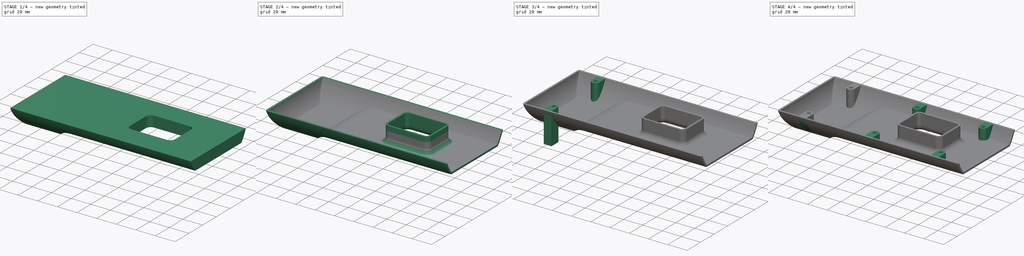
[diagram: build sequence overview — one tinted view per stage of 4, left to right]
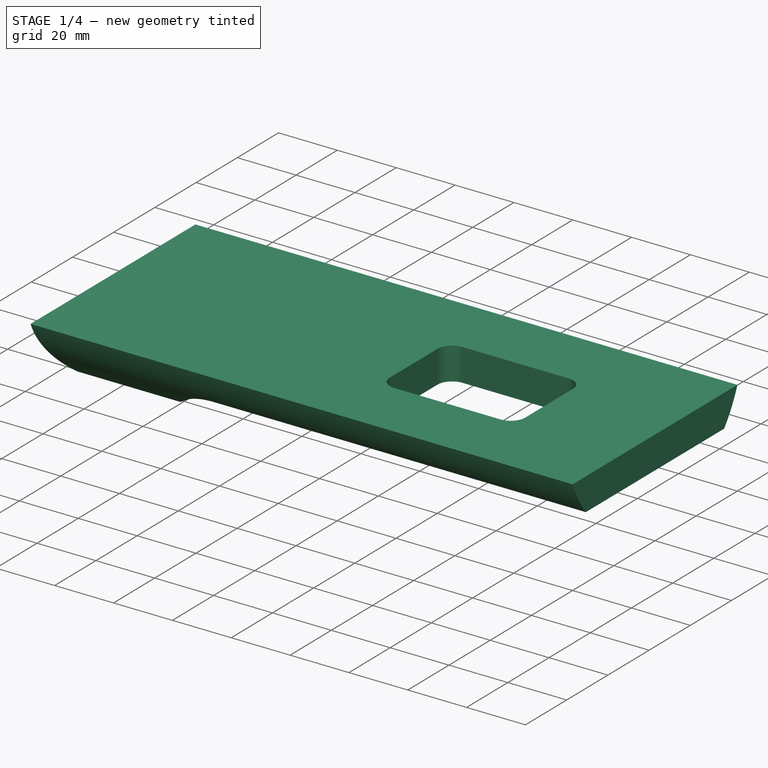
[diagram: stage 1 of 4 — iso view after this stage's code; geometry added in this stage tinted green]
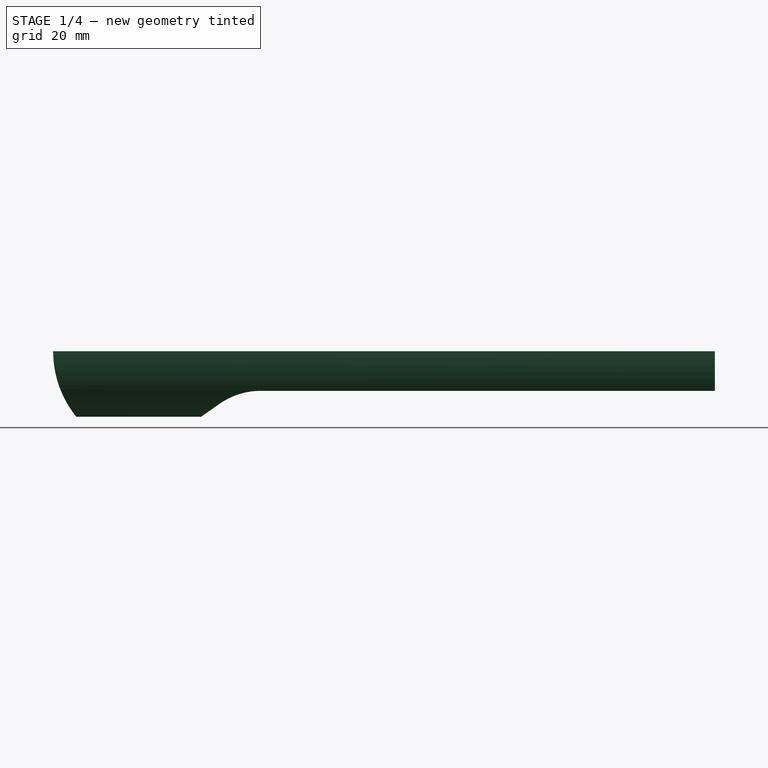
[diagram: stage 1 of 4 — front view after this stage's code; geometry added in this stage tinted green]
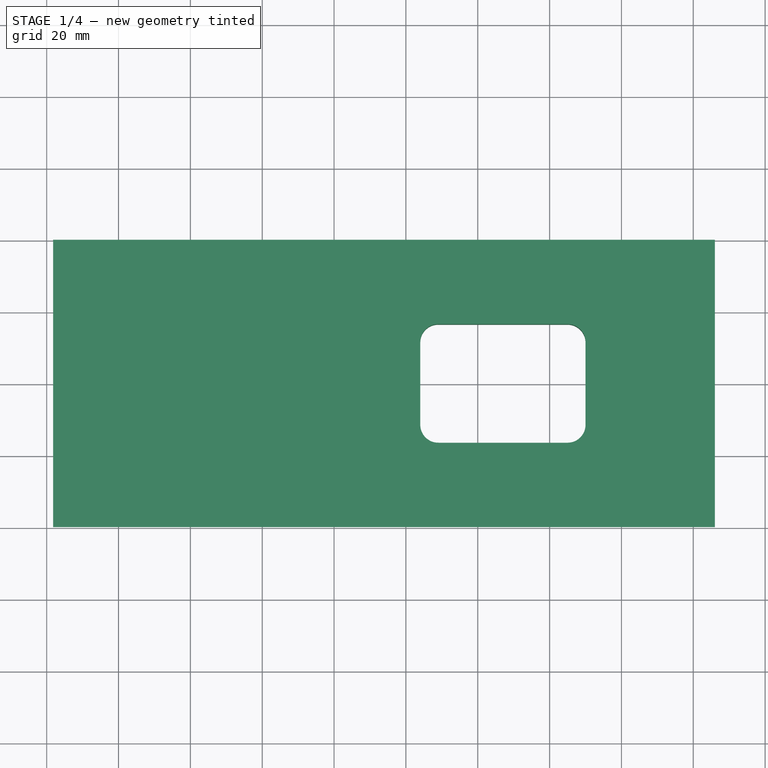
[diagram: stage 1 of 4 — top view after this stage's code; geometry added in this stage tinted green]
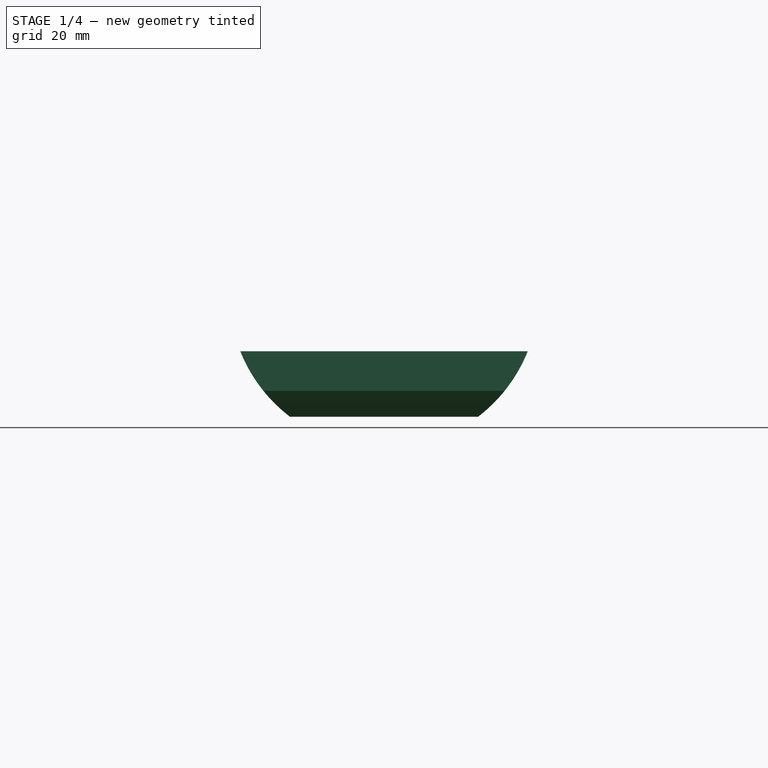
[diagram: stage 1 of 4 — right view after this stage's code; geometry added in this stage tinted green]
FCSTD DOCUMENT  (FreeCAD 0.21R33771 (Git))
Label: ex23
License: All rights reserved
LicenseURL: https://en.wikipedia.org/wiki/All_rights_reserved
objects: Sketcher::SketchObject×7, PartDesign::Pocket×5, PartDesign::Pad×3, PartDesign::Fillet×1, PartDesign::Thickness×1, PartDesign::LinearPattern×1, PartDesign::Body×1
note: 29 computed .brp shape members not serialized (recipe doc carries the construction recipe); baked Part::Feature solids carry a one-line shape summary decoded from their .brp

FEATURE [Sketcher::SketchObject] Sketch
  FullyConstrained = true
  MapMode = 5
  Placement = pos=(0,0,0) rot=(0.57735,0.57735,0.57735;2.0944rad)
  Support = -> [YZ_Plane]
  sketch-geometry (4):
    g0: ArcOfCircle CenterX=0 CenterY=0 CenterZ=0 NormalX=0 NormalY=0 NormalZ=1 AngleXU=0 Radius=43.0813 StartAngle=3.5221 EndAngle=4.13087
    g1: LineSegment StartX=-40 StartY=-16 StartZ=0 EndX=40 EndY=-16 EndZ=0
    g2: LineSegment StartX=23.6643 StartY=-36 StartZ=0 EndX=-23.6643 EndY=-36 EndZ=0
    g3: ArcOfCircle CenterX=0 CenterY=0 CenterZ=0 NormalX=0 NormalY=0 NormalZ=1 AngleXU=0 Radius=43.0813 StartAngle=5.29391 EndAngle=5.90268
  constraints (11):
    c: Coincident(g0,g-1)
    c: Horizontal(g2)
    c: Coincident(g0,g2)
    c: Coincident(g0,g3)
    c: Coincident(g2,g3)
    c: Coincident(g3,g1)
    c: Coincident(g0,g1)
    c: DistanceY(g-1,g0) = -16
    c: Symmetric(g0,g1,g-2)
    c: DistanceY(g2,g1) = 20
    c: DistanceX(g1,g1) = 80
FEATURE [PartDesign::Pad] Pad
  Direction = (1,-2e-16,3e-16)
  Length = 186
  Length2 = 10
  Placement = pos=(0,0,0) rot=(1,1,1;2.0944rad)
  Profile = -> Sketch
  ReferenceAxis = -> Sketch [N_Axis]
  Type = 0
FEATURE [Sketcher::SketchObject] Sketch001
  ExternalGeometry = -> [Pad]
  FullyConstrained = false
  MapMode = 5
  Placement = pos=(0,0,0) rot=(1,0,0;1.5708rad)
  Support = -> [XZ_Plane]
  sketch-geometry (10):
    g0: ArcOfCircle CenterX=30.8 CenterY=-16 CenterZ=0 NormalX=0 NormalY=0 NormalZ=1 AngleXU=0 Radius=29 StartAngle=3.14159 EndAngle=3.82004
    g1: LineSegment StartX=8.22213 StartY=-34.2 StartZ=0 EndX=43 EndY=-34.2 EndZ=0
    g2: LineSegment StartX=43 StartY=-34.2 StartZ=0 EndX=48.1171 EndY=-30.617 EndZ=0
    g3: LineSegment StartX=59.5886 StartY=-27 StartZ=0 EndX=187.259 EndY=-27 EndZ=0
    g4: ArcOfCircle CenterX=59.5886 CenterY=-47 CenterZ=0 NormalX=0 NormalY=0 NormalZ=1 AngleXU=0 Radius=20 StartAngle=1.5708 EndAngle=2.18166
    g5: LineSegment StartX=1.8 StartY=-16 StartZ=0 EndX=-8.28708 EndY=-16 EndZ=0
    g6: LineSegment StartX=-8.28708 StartY=-16 StartZ=0 EndX=-8.28708 EndY=-44.8886 EndZ=0
    g7: LineSegment StartX=-8.28708 StartY=-44.8886 StartZ=0 EndX=191.951 EndY=-44.8886 EndZ=0
    g8: LineSegment StartX=191.951 StartY=-44.8886 StartZ=0 EndX=191.951 EndY=-27 EndZ=0
    g9: LineSegment StartX=191.951 StartY=-27 StartZ=0 EndX=187.259 EndY=-27 EndZ=0
  constraints (25):
    c: PointOnObject(g0,g-5)
    c: Radius(g0) = 29
    c: Horizontal(g1)
    c: Coincident(g1,g2)
    c: Horizontal(g3)
    c: Angle(g2,g1) = 2.53073
    c: Tangent(g2,g4) = 1.5708
    c: Tangent(g3,g4) = 1.5708
    c: Radius(g4) = 20
    c: DistanceY(g3,g-5) = 11
    c: Horizontal(g5)
    c: Coincident(g5,g6)
    c: Vertical(g6)
    c: Coincident(g6,g7)
    c: Horizontal(g7)
    c: Coincident(g7,g8)
    c: Vertical(g8)
    c: Coincident(g8,g9)
    c: Coincident(g9,g3)
    c: Horizontal(g9)
    c: DistanceX(g-6,g1) = 43
    c: Coincident(g1,g0)
    c: Distance(g0,g-6) = 1.8
    c: DistanceX(g-5,g0) = 1.8
    c: Coincident(g5,g0)
FEATURE [PartDesign::Pocket] Pocket
  BaseFeature = -> Pad
  Direction = (0,1,-2e-16)
  Length = 5
  Length2 = 5
  Midplane = true
  Placement = pos=(0,0,0) rot=(1,1,1;2.0944rad)
  Profile = -> Sketch001
  ReferenceAxis = -> Sketch001 [N_Axis]
  Type = 1
FEATURE [Sketcher::SketchObject] Sketch002
  ExternalGeometry = -> [Pocket]
  FullyConstrained = true
  MapMode = 5
  Placement = pos=(1.15e-14,-1.31e-14,-16) rot=(0,0,-1;1.5708rad)
  Support = -> [Pocket]
  sketch-geometry (10):
    g0: ArcOfCircle CenterX=-11.5 CenterY=145 CenterZ=0 NormalX=0 NormalY=0 NormalZ=1 AngleXU=0 Radius=5 StartAngle=1.5708 EndAngle=3.14159
    g1: LineSegment StartX=-11.5 StartY=150 StartZ=0 EndX=11.5 EndY=150 EndZ=0
    g2: ArcOfCircle CenterX=11.5 CenterY=145 CenterZ=0 NormalX=0 NormalY=0 NormalZ=1 AngleXU=0 Radius=5 StartAngle=-2.75e-14 EndAngle=1.5708
    g3: LineSegment StartX=16.5 StartY=145 StartZ=0 EndX=16.5 EndY=109 EndZ=0
    g4: ArcOfCircle CenterX=11.5 CenterY=109 CenterZ=0 NormalX=0 NormalY=0 NormalZ=1 AngleXU=0 Radius=5 StartAngle=4.71239 EndAngle=6.28319
    g5: LineSegment StartX=11.5 StartY=104 StartZ=0 EndX=-11.5 EndY=104 EndZ=0
    g6: ArcOfCircle CenterX=-11.5 CenterY=109 CenterZ=0 NormalX=0 NormalY=0 NormalZ=1 AngleXU=0 Radius=5 StartAngle=3.14159 EndAngle=4.71239
    g7: LineSegment StartX=-16.5 StartY=109 StartZ=0 EndX=-16.5 EndY=145 EndZ=0
    g8: GeomPoint X=-16.5 Y=150 Z=0
    g9: GeomPoint X=16.5 Y=104 Z=0
  constraints (23):
    c: Tangent(g0,g1) = 1.5708
    c: Tangent(g1,g2) = 1.5708
    c: Tangent(g2,g3) = 1.5708
    c: Tangent(g3,g4) = 1.5708
    c: Tangent(g4,g5) = 1.5708
    c: Tangent(g5,g6) = 1.5708
    c: Tangent(g6,g7) = 1.5708
    c: Tangent(g7,g0) = 1.5708
    c: Horizontal(g1)
    c: Horizontal(g5)
    c: Vertical(g3)
    c: Vertical(g7)
    c: Equal(g2,g4)
    c: Equal(g4,g6)
    c: PointOnObject(g8,g1)
    c: PointOnObject(g8,g7)
    c: PointOnObject(g9,g3)
    c: PointOnObject(g9,g5)
    c: Symmetric(g0,g2,g-2)
    c: DistanceX(g0,g2) = 33
    c: DistanceY(g4,g1) = 46
    c: DistanceY(g1,g-3) = 36
    c: Radius(g0) = 5
FEATURE [PartDesign::Pocket] Pocket001
  BaseFeature = -> Pocket
  Direction = (7e-16,-8e-16,-1)
  Length = 5
  Length2 = 5
  Placement = pos=(0,0,0) rot=(1,1,1;2.0944rad)
  Profile = -> Sketch002
  ReferenceAxis = -> Sketch002 [N_Axis]
  Type = 1
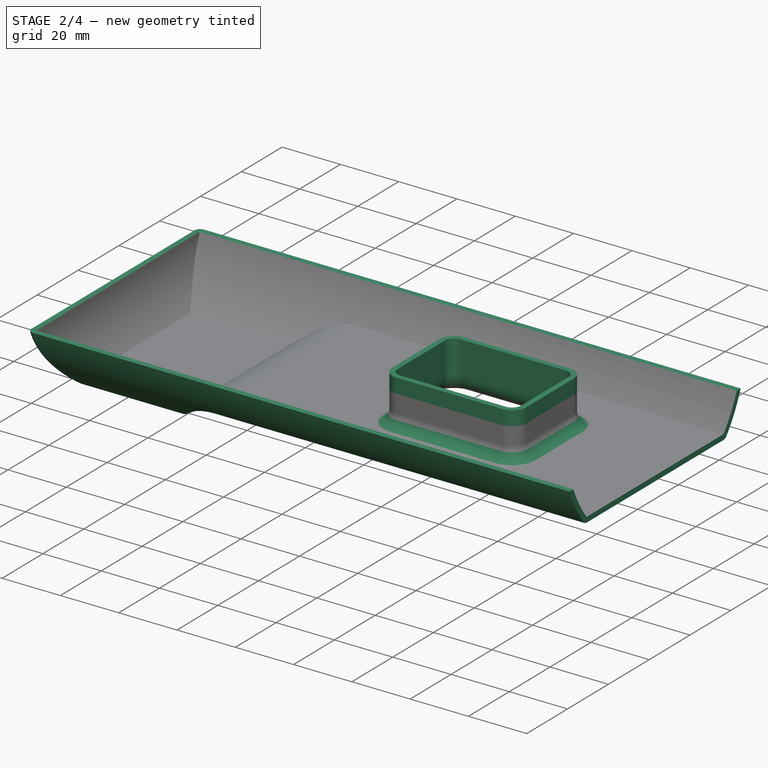
[diagram: stage 2 of 4 — iso view after this stage's code; geometry added in this stage tinted green]
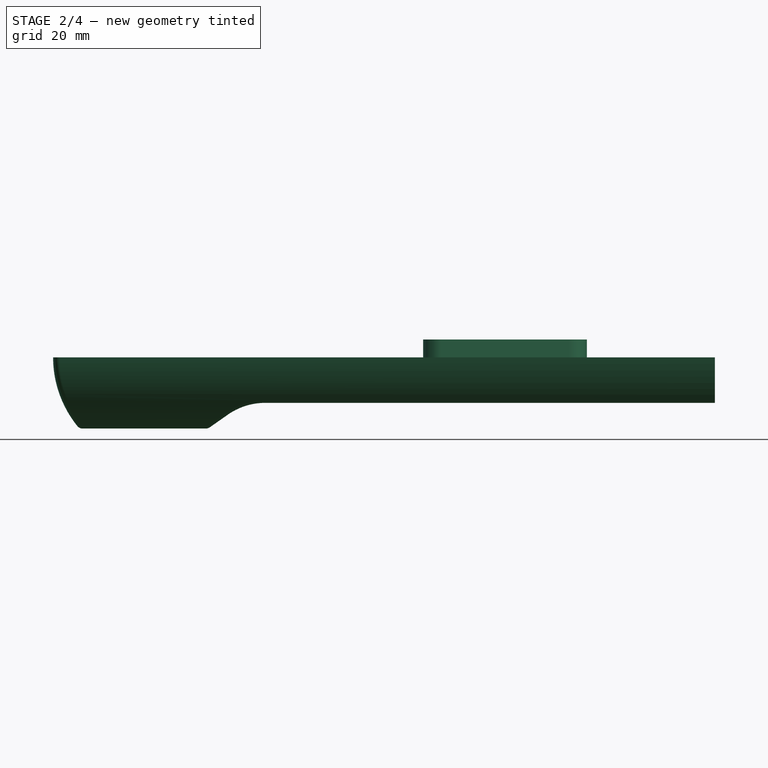
[diagram: stage 2 of 4 — front view after this stage's code; geometry added in this stage tinted green]
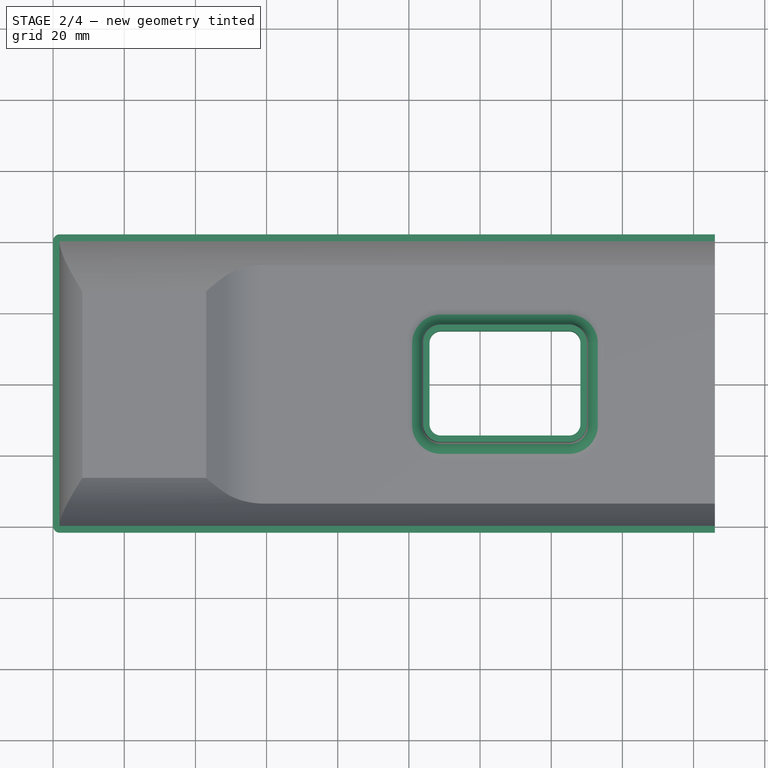
[diagram: stage 2 of 4 — top view after this stage's code; geometry added in this stage tinted green]
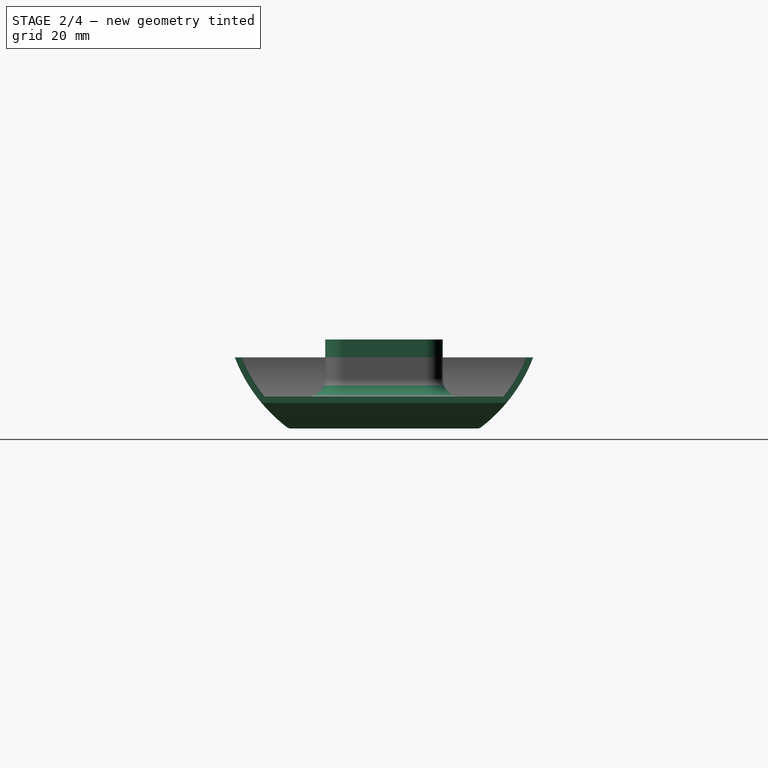
[diagram: stage 2 of 4 — right view after this stage's code; geometry added in this stage tinted green]
FEATURE [PartDesign::Fillet] Fillet
  Base = -> Pocket001 [Edge23]
  BaseFeature = -> Pocket001
  Placement = pos=(0,0,0) rot=(1,1,1;2.0944rad)
  Radius = 5
  SupportTransform = false
  UseAllEdges = false
FEATURE [PartDesign::Thickness] Thickness
  Base = -> Fillet [Face11,Face25]
  BaseFeature = -> Fillet
  Intersection = false
  Join = 0
  Mode = 0
  SupportTransform = false
  Value = 1.8
FEATURE [PartDesign::Pad] Pad001
  BaseFeature = -> Thickness
  Direction = (-6e-16,1.4e-15,1)
  Length = 5
  Length2 = 10
  Profile = -> Thickness [Face35]
  Type = 0
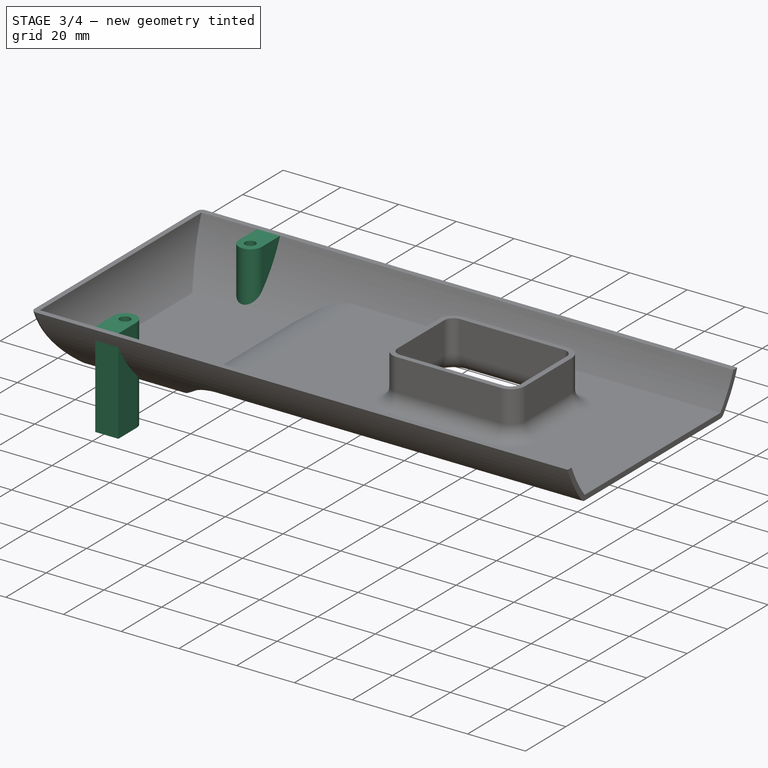
[diagram: stage 3 of 4 — iso view after this stage's code; geometry added in this stage tinted green]
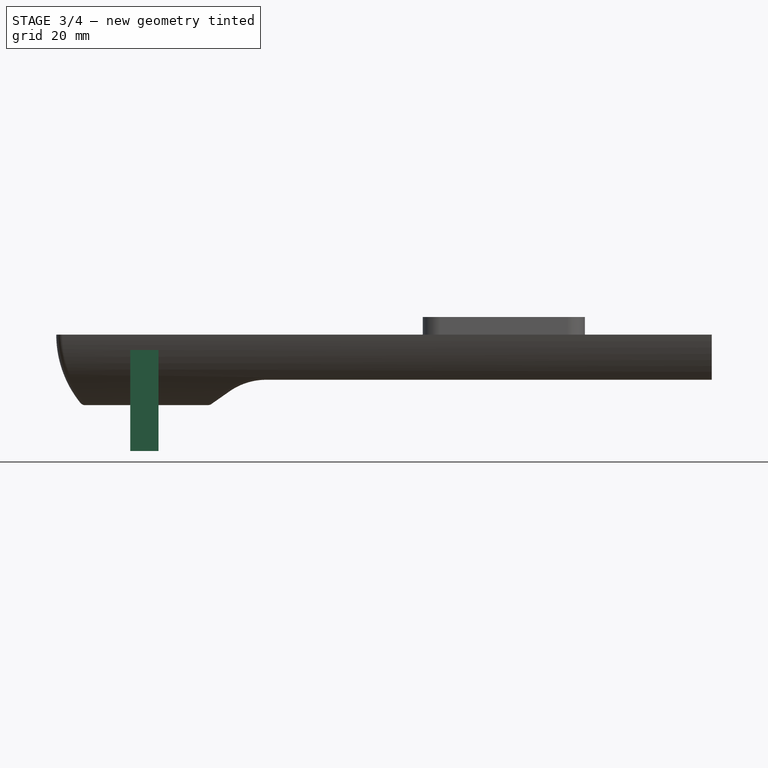
[diagram: stage 3 of 4 — front view after this stage's code; geometry added in this stage tinted green]
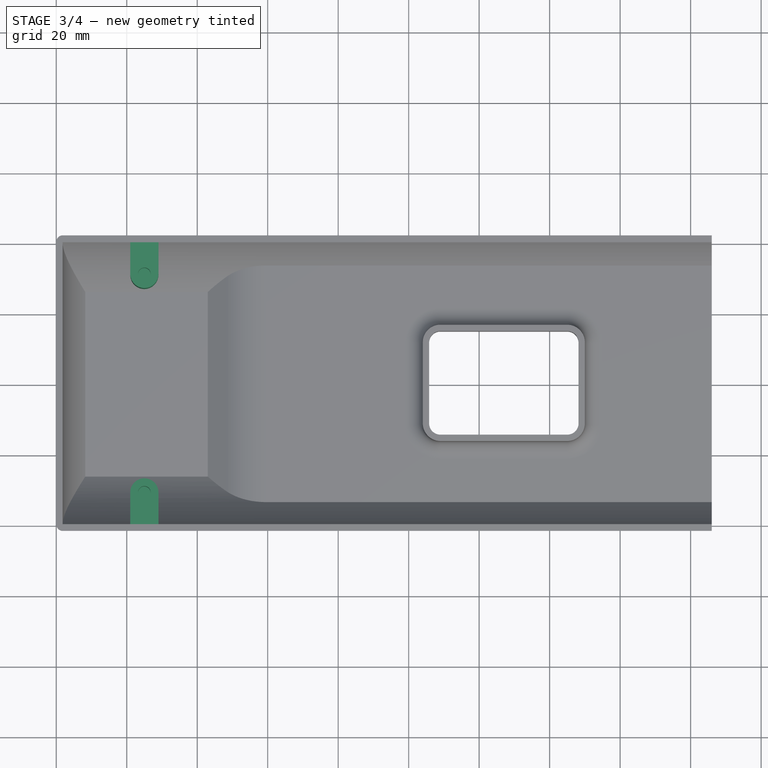
[diagram: stage 3 of 4 — top view after this stage's code; geometry added in this stage tinted green]
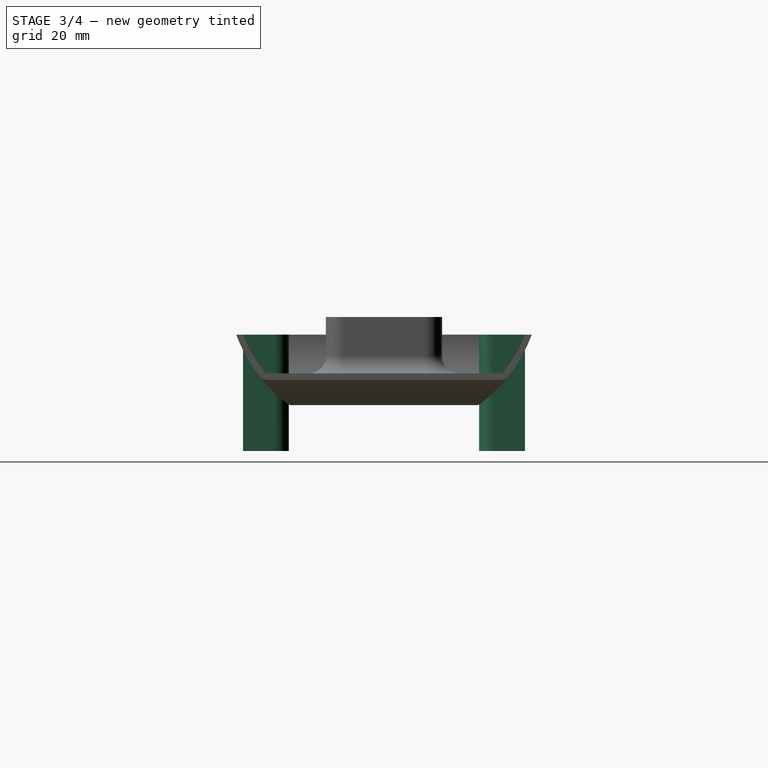
[diagram: stage 3 of 4 — right view after this stage's code; geometry added in this stage tinted green]
FEATURE [Sketcher::SketchObject] Sketch003
  ExternalGeometry = -> [Pad001]
  FullyConstrained = false
  MapMode = 5
  Placement = pos=(1.69e-14,-1.49e-14,-16) rot=(0,0,1;0rad)
  Support = -> [Pad001]
  sketch-geometry (8):
    g0: ArcOfCircle CenterX=25 CenterY=31 CenterZ=0 NormalX=0 NormalY=0 NormalZ=1 AngleXU=0 Radius=4 StartAngle=3.14159 EndAngle=6.28319
    g1: LineSegment StartX=29 StartY=31 StartZ=0 EndX=29 EndY=40 EndZ=0
    g2: LineSegment StartX=21 StartY=40 StartZ=0 EndX=21 EndY=31 EndZ=0
    g3: ArcOfCircle CenterX=25 CenterY=-31 CenterZ=0 NormalX=0 NormalY=0 NormalZ=1 AngleXU=0 Radius=4 StartAngle=4e-16 EndAngle=3.14159
    g4: LineSegment StartX=21 StartY=-31 StartZ=0 EndX=21 EndY=-40 EndZ=0
    g5: LineSegment StartX=29 StartY=-40 StartZ=0 EndX=29 EndY=-31 EndZ=0
    g6: LineSegment StartX=21 StartY=-40 StartZ=0 EndX=29 EndY=-40 EndZ=0
    g7: LineSegment StartX=21 StartY=40 StartZ=0 EndX=29 EndY=40 EndZ=0
  constraints (20):
    c: Tangent(g0,g1) = -1.5708
    c: Tangent(g2,g0) = -1.5708
    c: Vertical(g1)
    c: Tangent(g3,g4) = -1.5708
    c: Tangent(g5,g3) = -1.5708
    c: Vertical(g4)
    c: Equal(g3,g0)
    c: Distance(g0,g3) = 62
    c: Symmetric(g3,g0,g-1)
    c: PointOnObject(g6,g4)
    c: PointOnObject(g6,g-3)
    c: PointOnObject(g6,g-3)
    c: PointOnObject(g6,g5)
    c: PointOnObject(g5,g-3)
    c: PointOnObject(g4,g-3)
    c: PointOnObject(g7,g2)
    c: Horizontal(g7)
    c: PointOnObject(g7,g-4)
    c: Coincident(g1,g7)
    c: PointOnObject(g2,g-4)
FEATURE [PartDesign::Pad] Pad002
  BaseFeature = -> Pad001
  Direction = (-1.1e-15,9e-16,1)
  Length = 33
  Length2 = 10
  Profile = -> Sketch003
  ReferenceAxis = -> Sketch003 [N_Axis]
  Reversed = true
  Type = 0
FEATURE [Sketcher::SketchObject] Sketch004
  ExternalGeometry = -> [Pad002]
  FullyConstrained = true
  MapMode = 5
  Placement = pos=(1.61e-14,-1.48e-14,-16) rot=(0,0,1;0rad)
  Support = -> [Pad002]
  sketch-geometry (2):
    g0: Circle CenterX=25 CenterY=31 CenterZ=0 NormalX=0 NormalY=0 NormalZ=1 AngleXU=0 Radius=1.8
    g1: Circle CenterX=25 CenterY=-31 CenterZ=0 NormalX=0 NormalY=0 NormalZ=1 AngleXU=0 Radius=1.8
  constraints (4):
    c: Coincident(g0,g-3)
    c: Coincident(g1,g-4)
    c: Equal(g1,g0)
    c: Radius(g0) = 1.8
FEATURE [PartDesign::Pocket] Pocket002
  BaseFeature = -> Pad002
  Direction = (1e-15,-9e-16,-1)
  Length = 8
  Length2 = 5
  Profile = -> Sketch004
  ReferenceAxis = -> Sketch004 [N_Axis]
  Type = 0
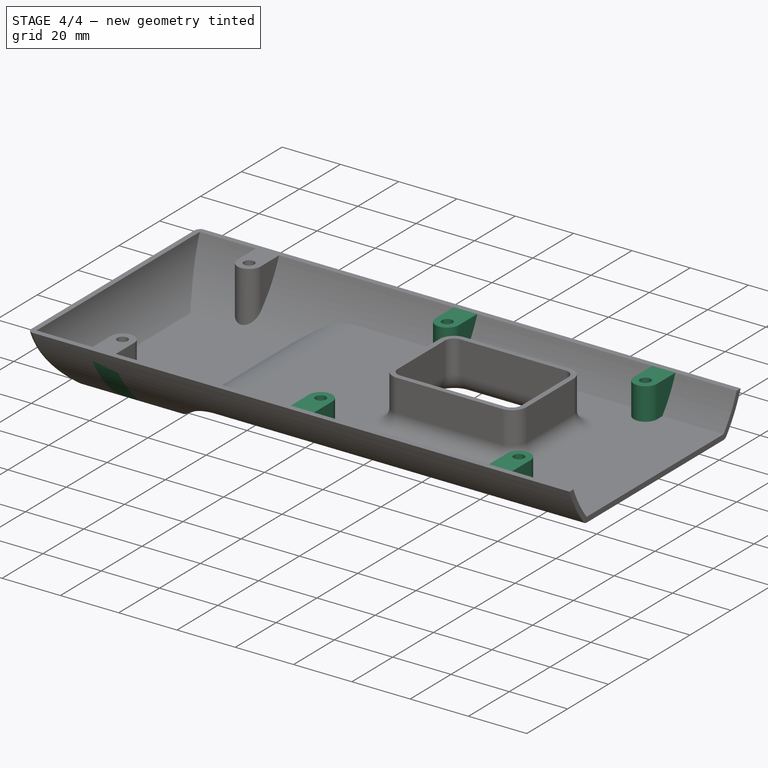
[diagram: stage 4 of 4 — iso view after this stage's code; geometry added in this stage tinted green]
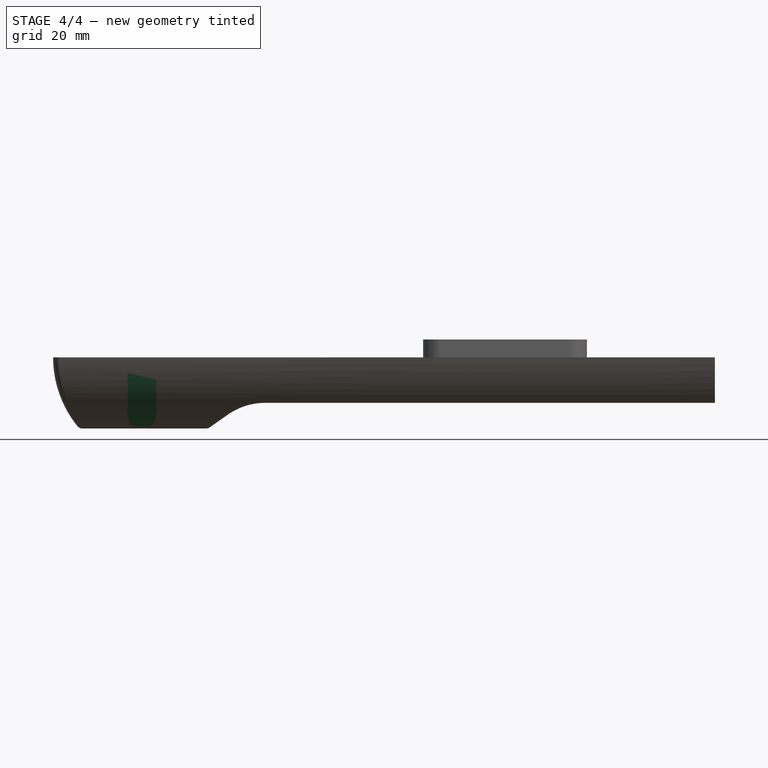
[diagram: stage 4 of 4 — front view after this stage's code; geometry added in this stage tinted green]
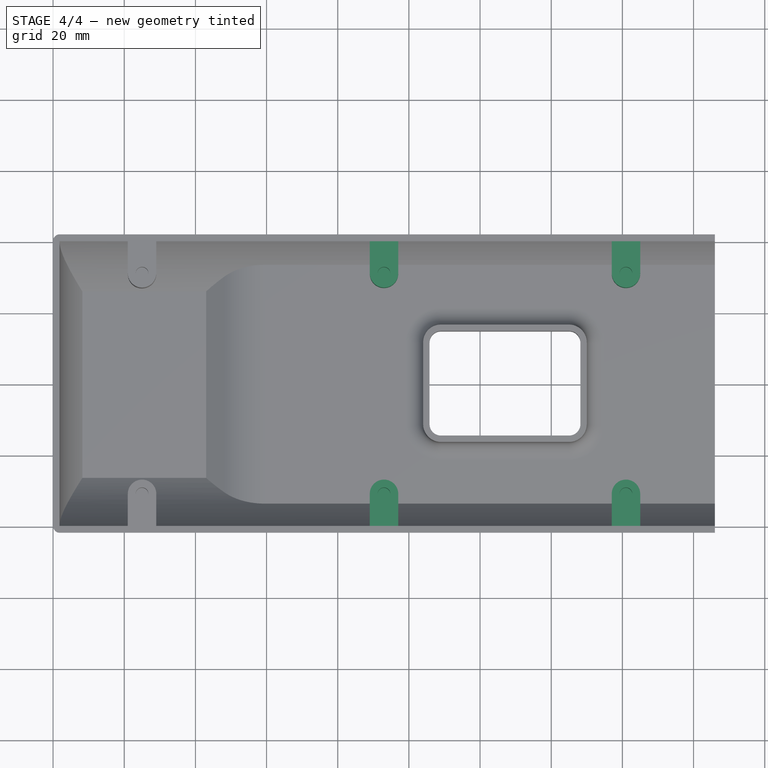
[diagram: stage 4 of 4 — top view after this stage's code; geometry added in this stage tinted green]
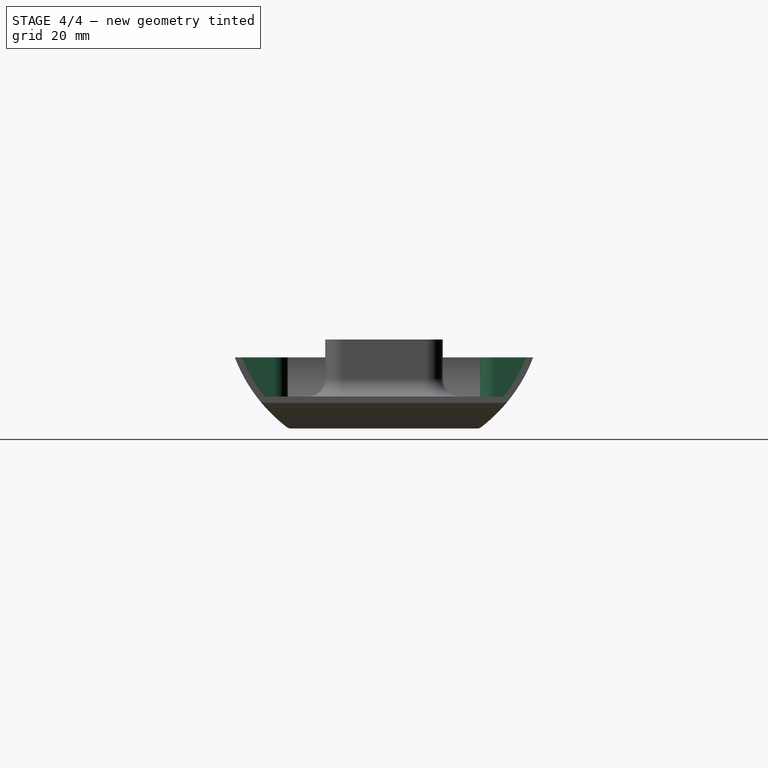
[diagram: stage 4 of 4 — right view after this stage's code; geometry added in this stage tinted green]
FEATURE [PartDesign::LinearPattern] LinearPattern
  BaseFeature = -> Pocket002
  Direction = -> Sketch003 [H_Axis]
  Length = 136
  Occurrences = 3
  Originals = -> [Pad002,Pocket002]
FEATURE [Sketcher::SketchObject] Sketch005
  ExternalGeometry = -> [LinearPattern]
  FullyConstrained = false
  MapMode = 5
  Placement = pos=(186,-1.652e-13,1.033e-13) rot=(0.57735,0.57735,0.57735;2.0944rad)
  Support = -> [LinearPattern]
  sketch-geometry (13):
    g0: ArcOfCircle CenterX=-1.96e-14 CenterY=-4.569e-12 CenterZ=0 NormalX=0 NormalY=0 NormalZ=1 AngleXU=0 Radius=44.8813 StartAngle=5.60585 EndAngle=5.91867
    g1: ArcOfCircle CenterX=-33.5708 CenterY=-27 CenterZ=0 NormalX=0 NormalY=0 NormalZ=1 AngleXU=0 Radius=1.8 StartAngle=3.81893 EndAngle=4.71239
    g2: ArcOfCircle CenterX=33.5708 CenterY=-27 CenterZ=0 NormalX=0 NormalY=0 NormalZ=1 AngleXU=0 Radius=1.8 StartAngle=4.71239 EndAngle=5.60585
    g3: LineSegment StartX=-33.5708 StartY=-28.8 StartZ=0 EndX=33.5708 EndY=-28.8 EndZ=0
    g4: ArcOfCircle CenterX=-1.96e-14 CenterY=-4.569e-12 CenterZ=0 NormalX=0 NormalY=0 NormalZ=1 AngleXU=0 Radius=44.8813 StartAngle=3.50611 EndAngle=3.81893
    g5: LineSegment StartX=-41.9325 StartY=-16 StartZ=0 EndX=-42.7159 EndY=-13.9469 EndZ=0
    g6: LineSegment StartX=-42.7159 StartY=-13.9469 StartZ=0 EndX=-50.6862 EndY=-13.9469 EndZ=0
    g7: LineSegment StartX=-50.6862 StartY=-13.9469 StartZ=0 EndX=-50.6862 EndY=-34.0817 EndZ=0
    g8: LineSegment StartX=-50.6862 StartY=-34.0817 StartZ=0 EndX=-50.6862 EndY=-54.8211 EndZ=0
    g9: LineSegment StartX=-50.6862 StartY=-54.8211 StartZ=0 EndX=50.9892 EndY=-54.8211 EndZ=0
    g10: LineSegment StartX=50.9892 StartY=-54.8211 StartZ=0 EndX=48.3761 EndY=-9.92372 EndZ=0
    g11: LineSegment StartX=48.3761 StartY=-9.92372 StartZ=0 EndX=41.7247 EndY=-11.5866 EndZ=0
    g12: LineSegment StartX=41.7247 StartY=-11.5866 StartZ=0 EndX=41.9325 EndY=-16 EndZ=0
  constraints (24):
    c: Coincident(g1,g-6)
    c: Coincident(g2,g-5)
    c: Coincident(g1,g-4)
    c: Coincident(g2,g-4)
    c: Coincident(g3,g1)
    c: Coincident(g3,g2)
    c: Coincident(g4,g1)
    c: Coincident(g0,g2)
    c: Equal(g0,g4)
    c: PointOnObject(g0,g-3)
    c: Coincident(g0,g4)
    c: Tangent(g4,g5) = 1.5708
    c: Coincident(g5,g6)
    c: Horizontal(g6)
    c: Coincident(g6,g7)
    c: Vertical(g7)
    c: Coincident(g7,g8)
    c: Vertical(g8)
    c: Coincident(g8,g9)
    c: Horizontal(g9)
    c: Coincident(g9,g10)
    c: Coincident(g10,g11)
    c: Coincident(g11,g12)
    c: Coincident(g12,g0)
FEATURE [PartDesign::Pocket] Pocket003
  BaseFeature = -> LinearPattern
  Direction = (-1,8e-16,-6e-16)
  Length = 103
  Length2 = 5
  Profile = -> Sketch005
  ReferenceAxis = -> Sketch005 [N_Axis]
  Type = 0
FEATURE [Sketcher::SketchObject] Sketch006
  ExternalGeometry = -> [LinearPattern]
  FullyConstrained = false
  MapMode = 5
  Placement = pos=(186,-1.652e-13,1.033e-13) rot=(0.57735,0.57735,0.57735;2.0944rad)
  Support = -> [LinearPattern]
  sketch-geometry (13):
    g0: ArcOfCircle CenterX=1.14e-14 CenterY=-7.01e-14 CenterZ=0 NormalX=0 NormalY=0 NormalZ=1 AngleXU=0 Radius=44.8813 StartAngle=5.36643 EndAngle=6.20145
    g1: ArcOfCircle CenterX=1.14e-14 CenterY=-7.01e-14 CenterZ=0 NormalX=0 NormalY=0 NormalZ=1 AngleXU=0 Radius=44.8813 StartAngle=3.50611 EndAngle=4.05834
    g2: LineSegment StartX=-41.9325 StartY=-16 StartZ=0 EndX=-42.5209 EndY=-14.4579 EndZ=0
    g3: LineSegment StartX=-42.5209 StartY=-14.4579 StartZ=0 EndX=-49.1919 EndY=-14.4579 EndZ=0
    g4: LineSegment StartX=-49.1919 StartY=-14.4579 StartZ=0 EndX=-49.1919 EndY=-34.0817 EndZ=0
    g5: LineSegment StartX=-49.1919 StartY=-34.0817 StartZ=0 EndX=-49.1919 EndY=-56.0952 EndZ=0
    g6: LineSegment StartX=-49.1919 StartY=-56.0952 StartZ=0 EndX=52.4836 EndY=-56.0952 EndZ=0
    g7: LineSegment StartX=52.4836 StartY=-56.0952 StartZ=0 EndX=48.3761 EndY=-9.92372 EndZ=0
    g8: LineSegment StartX=48.3761 StartY=-9.92372 StartZ=0 EndX=50.0037 EndY=-2.57228 EndZ=0
    g9: LineSegment StartX=50.0037 StartY=-2.57228 StartZ=0 EndX=44.7315 EndY=-3.66452 EndZ=0
    g10: LineSegment StartX=-26.2108 StartY=-35.9906 StartZ=0 EndX=26.2108 EndY=-35.9906 EndZ=0
    g11: ArcOfCircle CenterX=26.2108 CenterY=-34.1906 CenterZ=0 NormalX=0 NormalY=0 NormalZ=1 AngleXU=0 Radius=1.8 StartAngle=4.71239 EndAngle=5.36643
    g12: ArcOfCircle CenterX=-26.2108 CenterY=-34.1906 CenterZ=0 NormalX=0 NormalY=0 NormalZ=1 AngleXU=0 Radius=1.8 StartAngle=4.05834 EndAngle=4.71239
  constraints (26):
    c: Equal(g0,g1)
    c: PointOnObject(g0,g-3)
    c: Coincident(g0,g1)
    c: Tangent(g1,g2) = 1.5708
    c: Coincident(g2,g3)
    c: Horizontal(g3)
    c: Coincident(g3,g4)
    c: Vertical(g4)
    c: Coincident(g4,g5)
    c: Vertical(g5)
    c: Coincident(g5,g6)
    c: Horizontal(g6)
    c: Coincident(g6,g7)
    c: Coincident(g7,g8)
    c: Coincident(g8,g9)
    c: Coincident(g9,g0)
    c: PointOnObject(g-10,g0)
    c: Coincident(g1,g-9)
    c: Radius(g-5) = 1.8
    c: Tangent(g0,g11) = -1.5708
    c: Tangent(g10,g11) = -1.5708
    c: Radius(g11) = 1.8
    c: Tangent(g1,g12) = -1.5708
    c: Tangent(g10,g12) = -1.5708
    c: Equal(g12,g11)
    c: Horizontal(g10)
FEATURE [PartDesign::Pocket] Pocket004
  BaseFeature = -> Pocket003
  Direction = (-1,8e-16,-6e-16)
  Length = 68
  Length2 = 5
  Profile = -> Sketch006
  ReferenceAxis = -> Sketch006 [N_Axis]
  Type = 1
FEATURE [PartDesign::Body] Body
  Group = -> [Sketch,Pad,Sketch001,Pocket,Sketch002,Pocket001,Fillet,Thickness,Pad001,Sketch003,Pad002,Sketch004,Pocket002,LinearPattern,Sketch005,Pocket003,Sketch006,Pocket004]
  Origin = -> Origin
  Tip = -> Pocket004
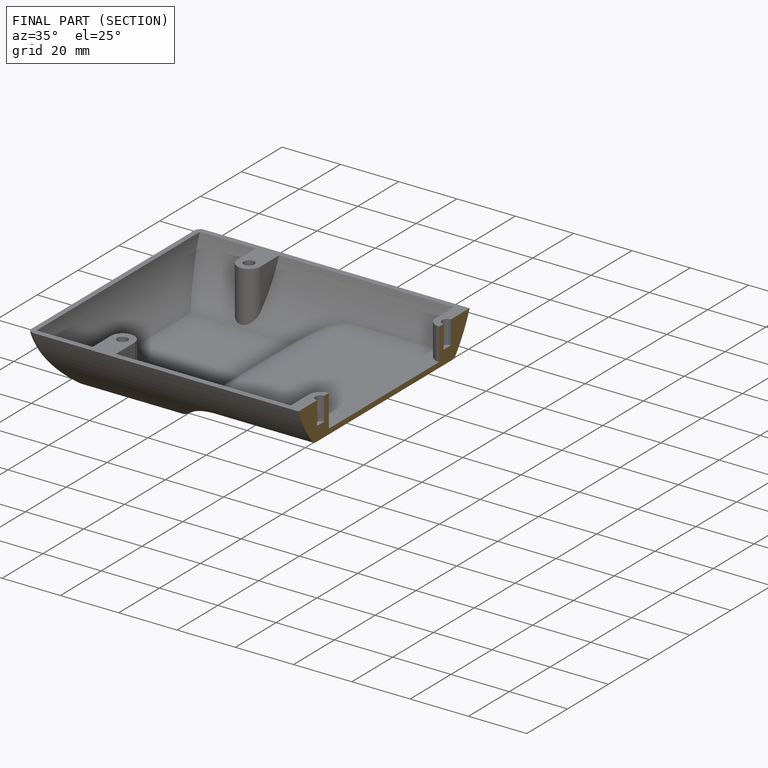
[diagram: finished part — half-section view (interior)]
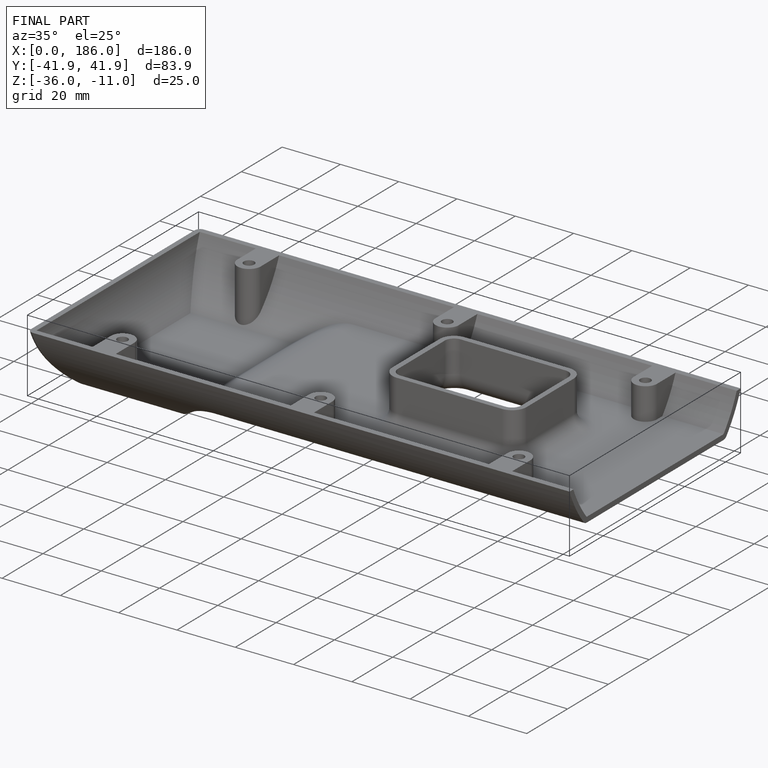
[diagram: finished part — iso view with bounding-box wireframe]
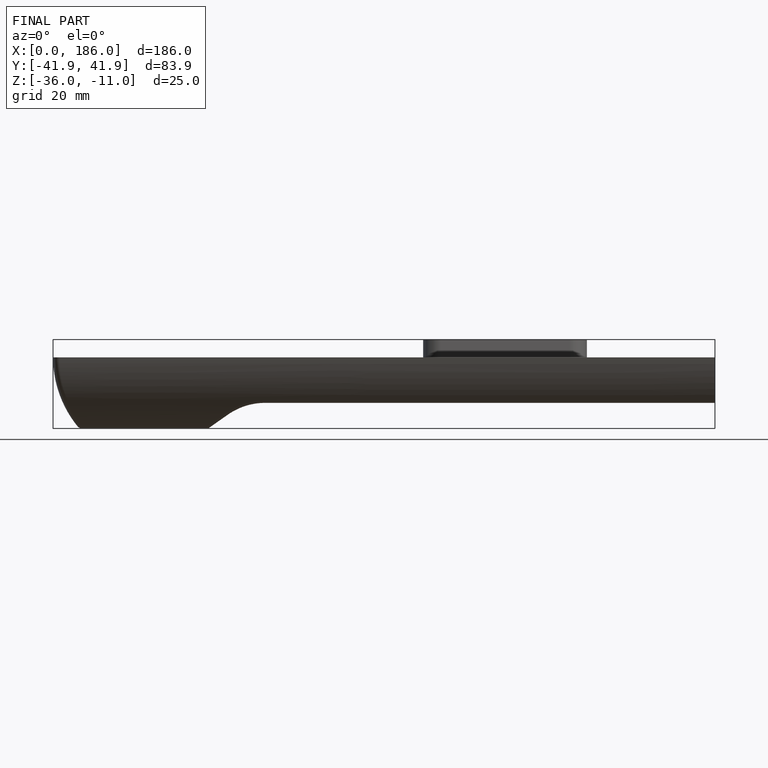
[diagram: finished part — front view with bounding-box wireframe]
